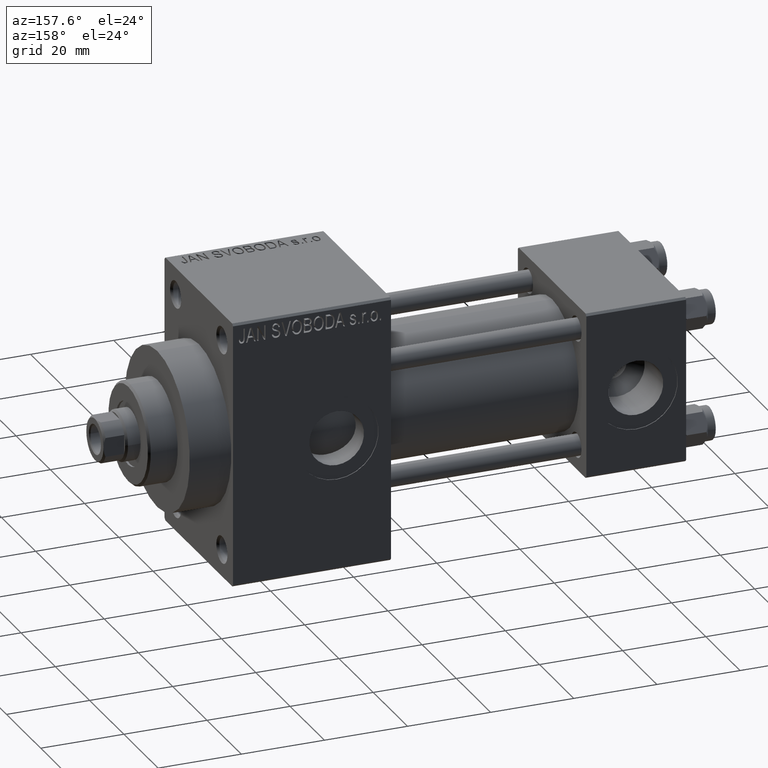
[diagram: clean part render]
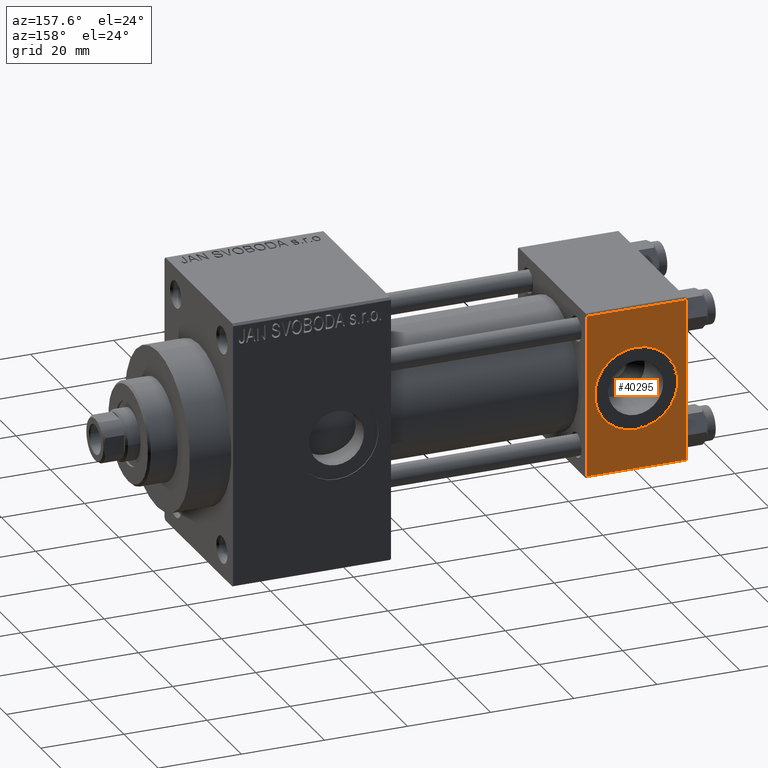
[diagram: same view with one face highlighted and labeled with its STEP entity id]
A machine part, auxiliary view. The second image highlights one B-rep face of the part: STEP entity #40295.
In plain terms, the highlighted planar face has unit normal (0, 1, 0).
Its self-contained STEP definition (entity closure, byte-faithful):
#501 = CARTESIAN_POINT ( 'NONE',  ( 0.000000000000000000, 20.00000000000000000, 19.49999999999999289 ) ) ;
#521 = EDGE_CURVE ( 'NONE', #37523, #43702, #1537, .T. ) ;
#745 = ORIENTED_EDGE ( 'NONE', *, *, #46267, .F. ) ;
#1537 = LINE ( 'NONE', #30883, #44849 ) ;
#1993 = EDGE_LOOP ( 'NONE', ( #47974, #25058, #46483, #33128 ) ) ;
#2399 = DIRECTION ( 'NONE',  ( 0.000000000000000000, 0.000000000000000000, -1.000000000000000000 ) ) ;
#2464 = VECTOR ( 'NONE', #39456, 1000.000000000000000 ) ;
#4925 = AXIS2_PLACEMENT_3D ( 'NONE', #8027, #27241, #19853 ) ;
#5418 = CARTESIAN_POINT ( 'NONE',  ( 24.00000000000000000, 20.00000000000000000, 19.49999999999999289 ) ) ;
#5552 = CARTESIAN_POINT ( 'NONE',  ( 12.00000000000000000, 20.00000000000000000, 10.00000000000000000 ) ) ;
#5739 = DIRECTION ( 'NONE',  ( 0.000000000000000000, -0.000000000000000000, 1.000000000000000000 ) ) ;
#8027 = CARTESIAN_POINT ( 'NONE',  ( 12.00000000000000000, 20.00000000000000000, 0.000000000000000000 ) ) ;
#9059 = EDGE_CURVE ( 'NONE', #25964, #43702, #39251, .T. ) ;
#9128 = AXIS2_PLACEMENT_3D ( 'NONE', #15287, #43759, #30327 ) ;
#9822 = CARTESIAN_POINT ( 'NONE',  ( 24.00000000000000000, 20.00000000000000000, -19.50000000000002132 ) ) ;
#12851 = DIRECTION ( 'NONE',  ( 0.000000000000000000, 0.000000000000000000, -1.000000000000000000 ) ) ;
#13331 = CARTESIAN_POINT ( 'NONE',  ( 0.000000000000000000, 20.00000000000000000, 20.00000000000000000 ) ) ;
#13457 = EDGE_LOOP ( 'NONE', ( #32041, #745 ) ) ;
#14087 = CARTESIAN_POINT ( 'NONE',  ( 24.00000000000000000, 20.00000000000000000, 20.00000000000000000 ) ) ;
#14096 = CARTESIAN_POINT ( 'NONE',  ( 12.00000000000000178, 20.00000000000000000, -10.00000000000000000 ) ) ;
#14861 = VERTEX_POINT ( 'NONE', #27733 ) ;
#15287 = CARTESIAN_POINT ( 'NONE',  ( 12.00000000000000000, 20.00000000000000000, 0.000000000000000000 ) ) ;
#17433 = AXIS2_PLACEMENT_3D ( 'NONE', #14087, #36068, #5739 ) ;
#17804 = FACE_BOUND ( 'NONE', #13457, .T. ) ;
#19853 = DIRECTION ( 'NONE',  ( 0.000000000000000000, 0.000000000000000000, 1.000000000000000000 ) ) ;
#23919 = VERTEX_POINT ( 'NONE', #14096 ) ;
#24327 = CARTESIAN_POINT ( 'NONE',  ( 24.00000000000000000, 20.00000000000000000, 20.00000000000000000 ) ) ;
#25058 = ORIENTED_EDGE ( 'NONE', *, *, #521, .T. ) ;
#25964 = VERTEX_POINT ( 'NONE', #501 ) ;
#27241 = DIRECTION ( 'NONE',  ( 0.000000000000000000, 1.000000000000000000, 0.000000000000000000 ) ) ;
#27733 = CARTESIAN_POINT ( 'NONE',  ( 24.00000000000000000, 20.00000000000000000, 19.49999999999999289 ) ) ;
#28364 = CARTESIAN_POINT ( 'NONE',  ( 0.000000000000000000, 20.00000000000000000, -19.50000000000002132 ) ) ;
#30327 = DIRECTION ( 'NONE',  ( 0.000000000000000000, 0.000000000000000000, 1.000000000000000000 ) ) ;
#30883 = CARTESIAN_POINT ( 'NONE',  ( 24.00000000000000000, 20.00000000000000000, -19.50000000000002132 ) ) ;
#32041 = ORIENTED_EDGE ( 'NONE', *, *, #33275, .F. ) ;
#33128 = ORIENTED_EDGE ( 'NONE', *, *, #39186, .T. ) ;
#33275 = EDGE_CURVE ( 'NONE', #40722, #23919, #39856, .T. ) ;
#34062 = CIRCLE ( 'NONE', #4925, 10.00000000000000000 ) ;
#35452 = LINE ( 'NONE', #24327, #42738 ) ;
#36068 = DIRECTION ( 'NONE',  ( -0.000000000000000000, 1.000000000000000000, 0.000000000000000000 ) ) ;
#36313 = PLANE ( 'NONE',  #17433 ) ;
#37523 = VERTEX_POINT ( 'NONE', #9822 ) ;
#39186 = EDGE_CURVE ( 'NONE', #25964, #14861, #39702, .T. ) ;
#39251 = LINE ( 'NONE', #13331, #40278 ) ;
#39264 = DIRECTION ( 'NONE',  ( -1.000000000000000000, 0.000000000000000000, 0.000000000000000000 ) ) ;
#39456 = DIRECTION ( 'NONE',  ( 1.000000000000000000, 0.000000000000000000, 0.000000000000000000 ) ) ;
#39702 = LINE ( 'NONE', #5418, #2464 ) ;
#39856 = CIRCLE ( 'NONE', #9128, 10.00000000000000000 ) ;
#40278 = VECTOR ( 'NONE', #12851, 1000.000000000000000 ) ;
#40295 = ADVANCED_FACE ( 'NONE', ( #17804, #47886 ), #36313, .T. ) ;
#40722 = VERTEX_POINT ( 'NONE', #5552 ) ;
#42738 = VECTOR ( 'NONE', #2399, 1000.000000000000000 ) ;
#43702 = VERTEX_POINT ( 'NONE', #28364 ) ;
#43759 = DIRECTION ( 'NONE',  ( 0.000000000000000000, 1.000000000000000000, 0.000000000000000000 ) ) ;
#44849 = VECTOR ( 'NONE', #39264, 1000.000000000000000 ) ;
#46267 = EDGE_CURVE ( 'NONE', #23919, #40722, #34062, .T. ) ;
#46483 = ORIENTED_EDGE ( 'NONE', *, *, #9059, .F. ) ;
#46710 = EDGE_CURVE ( 'NONE', #14861, #37523, #35452, .T. ) ;
#47886 = FACE_OUTER_BOUND ( 'NONE', #1993, .T. ) ;
#47974 = ORIENTED_EDGE ( 'NONE', *, *, #46710, .T. ) ;